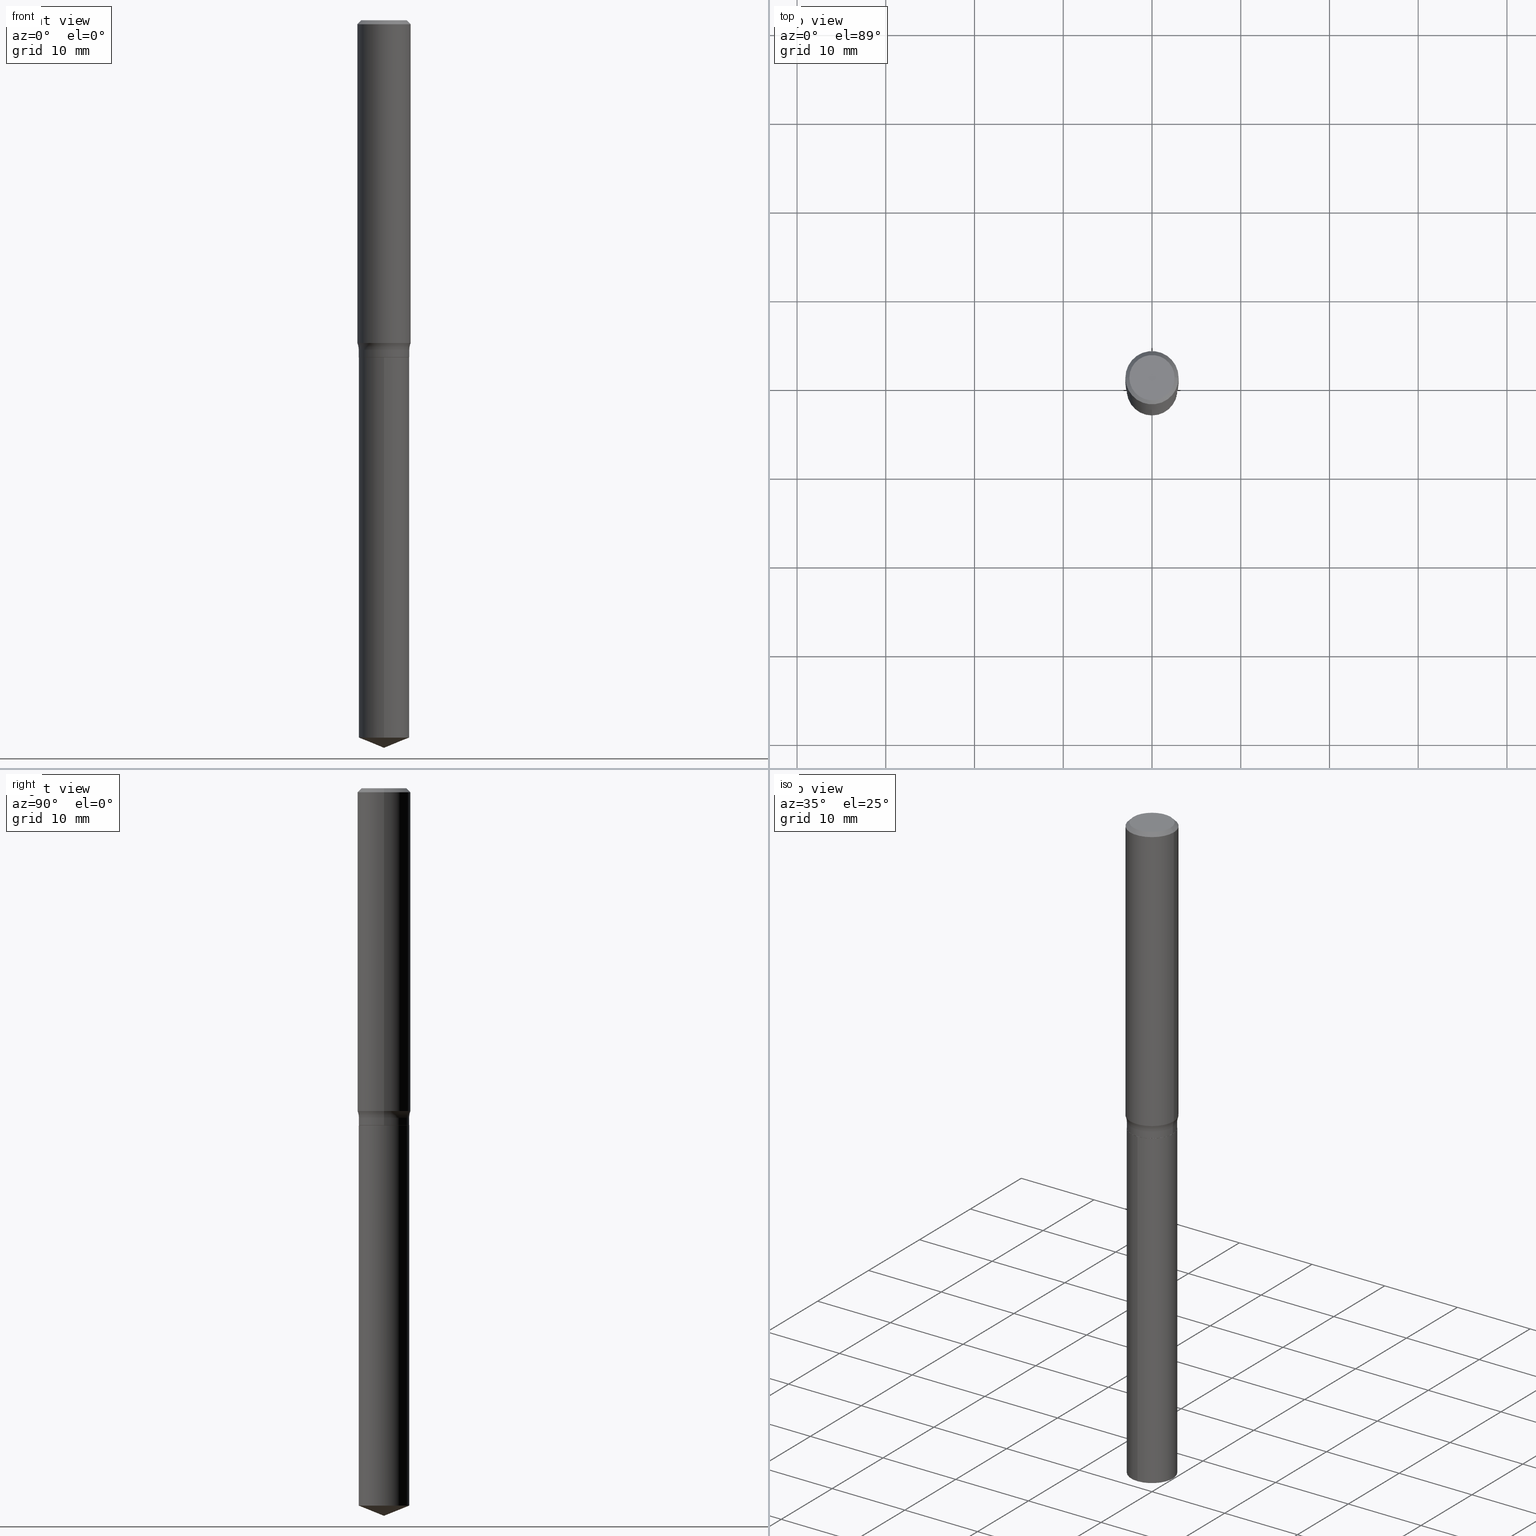
[diagram: canonical four-view strip — front | top / right | iso, engineering-drawing reading convention]
A machine part, canonical four-view strip (front | top / right | iso — engineering-drawing reading convention). The complete STEP part file that produces these views, byte-faithful:
ISO-10303-21;
HEADER;
FILE_DESCRIPTION (( 'STEP AP203' ),
    '1' );
FILE_NAME ('69250.STEP',
    '2024-04-19T17:31:19',
    ( '' ),
    ( '' ),
    'SwSTEP 2.0',
    'SolidWorks 2023',
    '' );
FILE_SCHEMA (( 'CONFIG_CONTROL_DESIGN' ));
ENDSEC;

DATA;
#1 = ADVANCED_FACE ( 'NONE', ( #329 ), #213, .T. ) ;
#2 = CONICAL_SURFACE ( 'NONE', #127, 97.44436430772752544, 1.186823891356141747 ) ;
#3 = EDGE_LOOP ( 'NONE', ( #48, #346, #88 ) ) ;
#4 = VERTEX_POINT ( 'NONE', #216 ) ;
#5 = CARTESIAN_POINT ( 'NONE',  ( 3.657687693411109493E-29, -5.222208638507693246E-15, -1.495700000000000029 ) ) ;
#6 = DIMENSIONAL_EXPONENTS ( 1.000000000000000000, 0.000000000000000000, 0.000000000000000000, 0.000000000000000000, 0.000000000000000000, 0.000000000000000000, 0.000000000000000000 ) ;
#7 = EDGE_LOOP ( 'NONE', ( #56, #394, #19, #464 ) ) ;
#8 = DIRECTION ( 'NONE',  ( -6.474490251793170740E-15, -0.9271838545667852038, 0.3746065934159174549 ) ) ;
#9 = ORIENTED_EDGE ( 'NONE', *, *, #89, .F. ) ;
#10 = CC_DESIGN_SECURITY_CLASSIFICATION ( #129, ( #86 ) ) ;
#11 = LINE ( 'NONE', #474, #375 ) ;
#12 = ORIENTED_EDGE ( 'NONE', *, *, #140, .T. ) ;
#13 = CARTESIAN_POINT ( 'NONE',  ( 3.502501020471370569E-29, -5.000643198279692524E-15, -1.432241135774360963 ) ) ;
#14 = DIRECTION ( 'NONE',  ( -2.445463019248761215E-29, 3.491489626065407071E-15, 1.000000000000000000 ) ) ;
#15 = CC_DESIGN_DATE_AND_TIME_ASSIGNMENT ( #369, #376, ( #92 ) ) ;
#16 = CYLINDRICAL_SURFACE ( 'NONE', #457, 0.1122000000000000081 ) ;
#17 = ORIENTED_EDGE ( 'NONE', *, *, #455, .F. ) ;
#18 = LOCAL_TIME ( 13, 31, 19.00000000000000000, #442 ) ;
#19 = ORIENTED_EDGE ( 'NONE', *, *, #124, .F. ) ;
#20 = CARTESIAN_POINT ( 'NONE',  ( 3.657687693411109493E-29, -5.222208638507693246E-15, -1.495700000000000029 ) ) ;
#21 = DIRECTION ( 'NONE',  ( -2.445468806185136597E-29, 3.491481338843145583E-15, 1.000000000000000000 ) ) ;
#22 = LENGTH_MEASURE_WITH_UNIT ( LENGTH_MEASURE( 0.02539999999999999897 ), #478 );
#23 = DIRECTION ( 'NONE',  ( 1.000000000000000000, -6.982962677686266711E-15, 0.000000000000000000 ) ) ;
#24 = PERSON_AND_ORGANIZATION_ROLE ( 'design_owner' ) ;
#25 = AXIS2_PLACEMENT_3D ( 'NONE', #381, #417, #415 ) ;
#26 = VECTOR ( 'NONE', #99, 39.37007874015748143 ) ;
#27 = CARTESIAN_POINT ( 'NONE',  ( 7.783106181679228868E-29, -1.111224080893544162E-14, -3.182668257461295003 ) ) ;
#28 = ADVANCED_FACE ( 'NONE', ( #475 ), #284, .F. ) ;
#29 = DIRECTION ( 'NONE',  ( -2.445463019248761215E-29, 3.491489626065407071E-15, 1.000000000000000000 ) ) ;
#30 = DIRECTION ( 'NONE',  ( -2.445468806185136597E-29, 3.491481338843145583E-15, 1.000000000000000000 ) ) ;
#31 = DIRECTION ( 'NONE',  ( -6.982962677686266711E-15, -1.000000000000000000, 3.491481338843145583E-15 ) ) ;
#32 = SECURITY_CLASSIFICATION_LEVEL ( 'unclassified' ) ;
#33 = AXIS2_PLACEMENT_3D ( 'NONE', #397, #286, #220 ) ;
#34 = DIRECTION ( 'NONE',  ( 2.445468806185136597E-29, -3.491481338843145583E-15, -1.000000000000000000 ) ) ;
#35 = LOCAL_TIME ( 13, 31, 19.00000000000000000, #422 ) ;
#36 = DATE_AND_TIME ( #312, #406 ) ;
#37 = ADVANCED_FACE ( 'NONE', ( #361 ), #364, .T. ) ;
#38 = CC_DESIGN_PERSON_AND_ORGANIZATION_ASSIGNMENT ( #229, #380, ( #86 ) ) ;
#39 = ORIENTED_EDGE ( 'NONE', *, *, #46, .F. ) ;
#40 = AXIS2_PLACEMENT_3D ( 'NONE', #161, #74, #483 ) ;
#41 = ORIENTED_EDGE ( 'NONE', *, *, #42, .T. ) ;
#42 = EDGE_CURVE ( 'NONE', #91, #351, #419, .T. ) ;
#43 = CIRCLE ( 'NONE', #120, 0.1116999999999999937 ) ;
#44 = CARTESIAN_POINT ( 'NONE',  ( 3.657687693411109493E-29, -5.222208638507693246E-15, -1.495700000000000029 ) ) ;
#45 = EDGE_LOOP ( 'NONE', ( #428, #168, #317, #235 ) ) ;
#46 = EDGE_CURVE ( 'NONE', #348, #91, #439, .T. ) ;
#47 = PLANE ( 'NONE',  #261 ) ;
#48 = ORIENTED_EDGE ( 'NONE', *, *, #358, .F. ) ;
#49 = FACE_OUTER_BOUND ( 'NONE', #234, .T. ) ;
#50 = EDGE_LOOP ( 'NONE', ( #17, #210, #141, #136 ) ) ;
#51 = TOROIDAL_SURFACE ( 'NONE', #283, 0.1902000000000000079, 0.07799999999999999989 ) ;
#52 = CARTESIAN_POINT ( 'NONE',  ( 3.657687693411109493E-29, -5.222208638507693246E-15, -1.495700000000000029 ) ) ;
#53 = EDGE_CURVE ( 'NONE', #4, #351, #185, .T. ) ;
#54 = DIRECTION ( 'NONE',  ( 1.000000000000000000, -6.982962677686266711E-15, 4.876176775795935793E-29 ) ) ;
#55 = CARTESIAN_POINT ( 'NONE',  ( 3.575275394642669920E-29, -5.104545717388679172E-15, -1.462000000000000188 ) ) ;
#56 = ORIENTED_EDGE ( 'NONE', *, *, #349, .T. ) ;
#57 = DIRECTION ( 'NONE',  ( -2.445468806185136597E-29, 3.491481338843145583E-15, 1.000000000000000000 ) ) ;
#58 = MANIFOLD_SOLID_BREP ( 'Body-Move/Copy2[1]', #293 ) ;
#59 = EDGE_LOOP ( 'NONE', ( #125, #107, #426, #12 ) ) ;
#60 = ADVANCED_FACE ( 'NONE', ( #402 ), #64, .F. ) ;
#61 = AXIS2_PLACEMENT_3D ( 'NONE', #144, #407, #289 ) ;
#62 = PERSON_AND_ORGANIZATION ( #307, #451 ) ;
#63 =( GEOMETRIC_REPRESENTATION_CONTEXT ( 3 ) GLOBAL_UNCERTAINTY_ASSIGNED_CONTEXT ( ( #115 ) ) GLOBAL_UNIT_ASSIGNED_CONTEXT ( ( #412, #142, #287 ) ) REPRESENTATION_CONTEXT ( 'NONE', 'WORKASPACE' ) );
#64 = PLANE ( 'NONE',  #84 ) ;
#65 = APPROVAL_DATE_TIME ( #152, #410 ) ;
#66 = FACE_OUTER_BOUND ( 'NONE', #82, .T. ) ;
#67 = CYLINDRICAL_SURFACE ( 'NONE', #260, 0.1122000000000000081 ) ;
#68 = LINE ( 'NONE', #249, #224 ) ;
#69 = AXIS2_PLACEMENT_3D ( 'NONE', #297, #231, #447 ) ;
#70 = APPROVAL_PERSON_ORGANIZATION ( #102, #410, #401 ) ;
#71 = LINE ( 'NONE', #265, #301 ) ;
#72 = DIRECTION ( 'NONE',  ( -2.445468806185136597E-29, 3.491481338843145583E-15, 1.000000000000000000 ) ) ;
#73 = APPLICATION_CONTEXT ( 'configuration controlled 3d designs of mechanical parts and assemblies' ) ;
#74 = DIRECTION ( 'NONE',  ( -2.445468806185136597E-29, 3.491481338843145583E-15, 1.000000000000000000 ) ) ;
#75 = ADVANCED_FACE ( 'NONE', ( #325 ), #208, .T. ) ;
#76 = APPROVAL_DATE_TIME ( #200, #424 ) ;
#77 = CIRCLE ( 'NONE', #147, 0.1122000000000000081 ) ;
#78 = CYLINDRICAL_SURFACE ( 'NONE', #112, 0.1122000000000000081 ) ;
#79 = EDGE_LOOP ( 'NONE', ( #128, #356 ) ) ;
#80 = ORIENTED_EDGE ( 'NONE', *, *, #288, .T. ) ;
#81 = EDGE_CURVE ( 'NONE', #348, #4, #137, .T. ) ;
#82 = EDGE_LOOP ( 'NONE', ( #460, #162, #41, #479 ) ) ;
#83 = EDGE_CURVE ( 'NONE', #123, #392, #481, .T. ) ;
#84 = AXIS2_PLACEMENT_3D ( 'NONE', #368, #254, #477 ) ;
#85 = ORIENTED_EDGE ( 'NONE', *, *, #143, .T. ) ;
#86 = PRODUCT_DEFINITION_FORMATION_WITH_SPECIFIED_SOURCE ( 'ANY', '', #296, .NOT_KNOWN. ) ;
#87 = CARTESIAN_POINT ( 'NONE',  ( 0.1181000000000002048, -5.825331090514442364E-15, -1.432241135774360963 ) ) ;
#88 = ORIENTED_EDGE ( 'NONE', *, *, #143, .F. ) ;
#89 = EDGE_CURVE ( 'NONE', #270, #215, #103, .T. ) ;
#90 = LINE ( 'NONE', #471, #148 ) ;
#91 = VERTEX_POINT ( 'NONE', #432 ) ;
#92 = PRODUCT_DEFINITION ( 'UNKNOWN', '', #86, #238 ) ;
#93 = DIRECTION ( 'NONE',  ( 1.000000000000000000, -6.982962677686262766E-15, 0.000000000000000000 ) ) ;
#94 = DIRECTION ( 'NONE',  ( -2.445468806185136597E-29, 3.491481338843145583E-15, 1.000000000000000000 ) ) ;
#95 = AXIS2_PLACEMENT_3D ( 'NONE', #411, #72, #187 ) ;
#96 = AXIS2_PLACEMENT_3D ( 'NONE', #427, #214, #93 ) ;
#97 = DIRECTION ( 'NONE',  ( 1.000000000000000000, -6.982962677686265922E-15, 4.883557194083112901E-29 ) ) ;
#98 = ORIENTED_EDGE ( 'NONE', *, *, #455, .T. ) ;
#99 = DIRECTION ( 'NONE',  ( -0.7071067811865454633, 2.468850131082235367E-15, -0.7071067811865495711 ) ) ;
#100 = EDGE_LOOP ( 'NONE', ( #291, #242, #197, #206 ) ) ;
#101 = APPLICATION_CONTEXT ( 'configuration controlled 3d designs of mechanical parts and assemblies' ) ;
#102 = PERSON_AND_ORGANIZATION ( #307, #451 ) ;
#103 = LINE ( 'NONE', #145, #164 ) ;
#104 = CIRCLE ( 'NONE', #95, 0.1180999999999999966 ) ;
#105 = CIRCLE ( 'NONE', #396, 0.1116999999999999937 ) ;
#106 = CALENDAR_DATE ( 2024, 19, 4 ) ;
#107 = ORIENTED_EDGE ( 'NONE', *, *, #151, .F. ) ;
#108 = DIRECTION ( 'NONE',  ( -6.982962677686265922E-15, -1.000000000000000000, 3.498761904101859901E-15 ) ) ;
#109 = DATE_AND_TIME ( #336, #365 ) ;
#110 = CC_DESIGN_PERSON_AND_ORGANIZATION_ASSIGNMENT ( #62, #409, ( #92 ) ) ;
#111 = DIRECTION ( 'NONE',  ( -6.982962677686265133E-15, -1.000000000000000000, 4.869604266781217263E-15 ) ) ;
#112 = AXIS2_PLACEMENT_3D ( 'NONE', #190, #489, #334 ) ;
#113 = CIRCLE ( 'NONE', #275, 0.1122000000000000081 ) ;
#114 = DIRECTION ( 'NONE',  ( -2.445468806185136597E-29, 3.491481338843145583E-15, 1.000000000000000000 ) ) ;
#115 = UNCERTAINTY_MEASURE_WITH_UNIT (LENGTH_MEASURE( 1.000000000000000082E-05 ), #412, 'distance_accuracy_value', 'NONE');
#116 = ADVANCED_FACE ( 'NONE', ( #66 ), #188, .T. ) ;
#117 = DIRECTION ( 'NONE',  ( 1.000000000000000000, -6.982962677686270655E-15, 0.000000000000000000 ) ) ;
#118 = ORIENTED_EDGE ( 'NONE', *, *, #390, .T. ) ;
#119 = AXIS2_PLACEMENT_3D ( 'NONE', #408, #21, #441 ) ;
#120 = AXIS2_PLACEMENT_3D ( 'NONE', #44, #438, #393 ) ;
#121 = VERTEX_POINT ( 'NONE', #487 ) ;
#122 = EDGE_CURVE ( 'NONE', #4, #276, #405, .T. ) ;
#123 = VERTEX_POINT ( 'NONE', #159 ) ;
#124 = EDGE_CURVE ( 'NONE', #341, #240, #318, .T. ) ;
#125 = ORIENTED_EDGE ( 'NONE', *, *, #445, .F. ) ;
#126 = FACE_OUTER_BOUND ( 'NONE', #100, .T. ) ;
#127 = AXIS2_PLACEMENT_3D ( 'NONE', #337, #452, #108 ) ;
#128 = ORIENTED_EDGE ( 'NONE', *, *, #349, .F. ) ;
#129 = SECURITY_CLASSIFICATION ( '', '', #32 ) ;
#130 = CARTESIAN_POINT ( 'NONE',  ( 7.893954626135001051E-29, -1.127052851293913482E-14, -3.228000000000000203 ) ) ;
#131 = EDGE_LOOP ( 'NONE', ( #308, #118, #278, #9 ) ) ;
#132 = PRODUCT_DEFINITION_SHAPE ( 'NONE', 'NONE',  #92 ) ;
#133 = DIRECTION ( 'NONE',  ( -6.982962677686265133E-15, -1.000000000000000000, 2.434802133390608632E-15 ) ) ;
#134 = DIRECTION ( 'NONE',  ( -2.445468806185136877E-29, 3.491481338843145188E-15, 1.000000000000000000 ) ) ;
#135 = DIRECTION ( 'NONE',  ( -2.445468806185136877E-29, 3.491481338843145188E-15, 1.000000000000000000 ) ) ;
#136 = ORIENTED_EDGE ( 'NONE', *, *, #230, .F. ) ;
#137 = CIRCLE ( 'NONE', #61, 0.1181000000000001909 ) ;
#138 = CC_DESIGN_APPROVAL ( #410, ( #92 ) ) ;
#139 = CARTESIAN_POINT ( 'NONE',  ( 0.1122000000000000081, -7.834884124363992007E-16, 5.471070342443040245E-30 ) ) ;
#140 = EDGE_CURVE ( 'NONE', #351, #91, #104, .T. ) ;
#141 = ORIENTED_EDGE ( 'NONE', *, *, #458, .T. ) ;
#142 =( NAMED_UNIT ( * ) PLANE_ANGLE_UNIT ( ) SI_UNIT ( $, .RADIAN. ) );
#143 = EDGE_CURVE ( 'NONE', #219, #270, #172, .T. ) ;
#144 = CARTESIAN_POINT ( 'NONE',  ( 3.502501020471370569E-29, -5.000643198279692524E-15, -1.432241135774360963 ) ) ;
#145 = CARTESIAN_POINT ( 'NONE',  ( -7.834884124363625186E-16, -0.1122000000000052261, -1.495699999999999807 ) ) ;
#146 = ADVANCED_FACE ( 'NONE', ( #259 ), #67, .T. ) ;
#147 = AXIS2_PLACEMENT_3D ( 'NONE', #418, #30, #23 ) ;
#148 = VECTOR ( 'NONE', #239, 39.37007874015748143 ) ;
#149 = DIRECTION ( 'NONE',  ( 1.000000000000000000, 0.000000000000000000, 0.000000000000000000 ) ) ;
#150 = CARTESIAN_POINT ( 'NONE',  ( 0.1902000000000000079, -6.432705218684607208E-15, -1.462000000000000188 ) ) ;
#151 = EDGE_CURVE ( 'NONE', #392, #123, #374, .T. ) ;
#152 = DATE_AND_TIME ( #480, #350 ) ;
#153 = CARTESIAN_POINT ( 'NONE',  ( 7.893954626135001051E-29, -1.127052851293913482E-14, -3.228000000000000203 ) ) ;
#154 = EDGE_LOOP ( 'NONE', ( #454, #273, #179, #39 ) ) ;
#155 = APPROVAL_DATE_TIME ( #109, #338 ) ;
#156 = FACE_OUTER_BOUND ( 'NONE', #45, .T. ) ;
#157 = ADVANCED_FACE ( 'NONE', ( #373 ), #2, .T. ) ;
#158 = CC_DESIGN_APPROVAL ( #338, ( #86 ) ) ;
#159 = CARTESIAN_POINT ( 'NONE',  ( 0.1003850000000000159, -7.803837484803599345E-16, -2.049109640502812012E-17 ) ) ;
#160 = SHAPE_DEFINITION_REPRESENTATION ( #132, #269 ) ;
#161 = CARTESIAN_POINT ( 'NONE',  ( 0.000000000000000000, 0.000000000000000000, 0.000000000000000000 ) ) ;
#162 = ORIENTED_EDGE ( 'NONE', *, *, #445, .T. ) ;
#163 = CALENDAR_DATE ( 2024, 19, 4 ) ;
#164 = VECTOR ( 'NONE', #444, 39.37007874015748143 ) ;
#165 = CIRCLE ( 'NONE', #436, 0.1122000000000000081 ) ;
#166 = ORIENTED_EDGE ( 'NONE', *, *, #83, .T. ) ;
#167 = APPROVAL_ROLE ( '' ) ;
#168 = ORIENTED_EDGE ( 'NONE', *, *, #81, .F. ) ;
#169 = DIRECTION ( 'NONE',  ( -2.445463019248761495E-29, 3.491489626065407071E-15, 1.000000000000000000 ) ) ;
#170 = ORIENTED_EDGE ( 'NONE', *, *, #184, .F. ) ;
#171 = CARTESIAN_POINT ( 'NONE',  ( -0.1003850000000000159, 7.319105043583386689E-16, -2.049109640503831060E-17 ) ) ;
#172 = CIRCLE ( 'NONE', #292, 0.1122000000000000081 ) ;
#173 = ORIENTED_EDGE ( 'NONE', *, *, #399, .F. ) ;
#174 = CARTESIAN_POINT ( 'NONE',  ( 7.972289495229102672E-16, 0.1121999999999947761, -1.495700000000000474 ) ) ;
#175 = CARTESIAN_POINT ( 'NONE',  ( 0.1181000000000001077, -8.246878922347488542E-16, 5.758764772215005345E-30 ) ) ;
#176 = LINE ( 'NONE', #391, #195 ) ;
#177 = DIRECTION ( 'NONE',  ( -2.445468806185136877E-29, 3.491481338843145188E-15, 1.000000000000000000 ) ) ;
#178 = FACE_OUTER_BOUND ( 'NONE', #384, .T. ) ;
#179 = ORIENTED_EDGE ( 'NONE', *, *, #42, .F. ) ;
#180 = AXIS2_PLACEMENT_3D ( 'NONE', #150, #31, #117 ) ;
#181 = AXIS2_PLACEMENT_3D ( 'NONE', #330, #440, #149 ) ;
#182 = CARTESIAN_POINT ( 'NONE',  ( -8.838410834231123198E-28, 1.261897053808972717E-13, 36.14207874015747990 ) ) ;
#183 = DIRECTION ( 'NONE',  ( -6.982962677686265133E-15, -1.000000000000000000, 2.434802133390608632E-15 ) ) ;
#184 = EDGE_CURVE ( 'NONE', #252, #276, #77, .T. ) ;
#185 = LINE ( 'NONE', #250, #327 ) ;
#186 = PERSON_AND_ORGANIZATION ( #307, #451 ) ;
#187 = DIRECTION ( 'NONE',  ( 1.000000000000000000, -6.982962677686266711E-15, 0.000000000000000000 ) ) ;
#188 = CONICAL_SURFACE ( 'NONE', #194, 0.1180999999999999966, 0.7853981633974453924 ) ;
#189 = APPLICATION_PROTOCOL_DEFINITION ( 'international standard', 'config_control_design', 1994, #101 ) ;
#190 = CARTESIAN_POINT ( 'NONE',  ( 3.657687693411109493E-29, -5.222208638507693246E-15, -1.495700000000000029 ) ) ;
#191 = ADVANCED_FACE ( 'NONE', ( #378 ), #78, .T. ) ;
#192 = FACE_OUTER_BOUND ( 'NONE', #50, .T. ) ;
#193 = PERSON_AND_ORGANIZATION_ROLE ( 'classification_officer' ) ;
#194 = AXIS2_PLACEMENT_3D ( 'NONE', #448, #34, #485 ) ;
#195 = VECTOR ( 'NONE', #398, 39.37007874015748143 ) ;
#196 = CARTESIAN_POINT ( 'NONE',  ( 0.000000000000000000, 0.000000000000000000, 0.000000000000000000 ) ) ;
#197 = ORIENTED_EDGE ( 'NONE', *, *, #232, .T. ) ;
#198 = CC_DESIGN_PERSON_AND_ORGANIZATION_ASSIGNMENT ( #255, #24, ( #296 ) ) ;
#199 = VERTEX_POINT ( 'NONE', #153 ) ;
#200 = DATE_AND_TIME ( #163, #35 ) ;
#201 = AXIS2_PLACEMENT_3D ( 'NONE', #333, #366, #54 ) ;
#202 = EDGE_LOOP ( 'NONE', ( #237, #166 ) ) ;
#203 = DIRECTION ( 'NONE',  ( -2.445463019248761215E-29, 3.491489626065407071E-15, 1.000000000000000000 ) ) ;
#204 = ORIENTED_EDGE ( 'NONE', *, *, #390, .F. ) ;
#205 = DIRECTION ( 'NONE',  ( 1.000000000000000000, -6.982962677686266711E-15, 4.876176775795935793E-29 ) ) ;
#206 = ORIENTED_EDGE ( 'NONE', *, *, #212, .F. ) ;
#207 = LINE ( 'NONE', #130, #491 ) ;
#208 = CONICAL_SURFACE ( 'NONE', #473, 0.1180999999999999966, 0.7853981633974453924 ) ;
#209 = CIRCLE ( 'NONE', #465, 0.1122000000000000081 ) ;
#210 = ORIENTED_EDGE ( 'NONE', *, *, #122, .T. ) ;
#211 = DIRECTION ( 'NONE',  ( 0.7071067811865454633, -7.319954787623248157E-15, -0.7071067811865495711 ) ) ;
#212 = EDGE_CURVE ( 'NONE', #240, #341, #433, .T. ) ;
#213 = CYLINDRICAL_SURFACE ( 'NONE', #201, 0.1181000000000001077 ) ;
#214 = DIRECTION ( 'NONE',  ( -2.445468806185136597E-29, 3.491481338843145583E-15, 1.000000000000000000 ) ) ;
#215 = VERTEX_POINT ( 'NONE', #339 ) ;
#216 = CARTESIAN_POINT ( 'NONE',  ( -0.1181000000000002048, -4.161492227347013538E-15, -1.432241135774360963 ) ) ;
#217 = CIRCLE ( 'NONE', #382, 0.1122000000000000081 ) ;
#218 = ADVANCED_FACE ( 'NONE', ( #492 ), #453, .T. ) ;
#219 = VERTEX_POINT ( 'NONE', #294 ) ;
#220 = DIRECTION ( 'NONE',  ( 1.000000000000000000, -6.982962677686265922E-15, 4.876176775795935793E-29 ) ) ;
#221 = APPROVAL_ROLE ( '' ) ;
#222 = DIRECTION ( 'NONE',  ( 1.000000000000000000, -6.982962677686266711E-15, 4.876176775795935793E-29 ) ) ;
#223 = AXIS2_PLACEMENT_3D ( 'NONE', #345, #114, #305 ) ;
#224 = VECTOR ( 'NONE', #332, 39.37007874015748143 ) ;
#225 = DIRECTION ( 'NONE',  ( 0.7071067811866199593, -2.468850131083015945E-15, 0.7071067811864750752 ) ) ;
#226 = DIRECTION ( 'NONE',  ( -2.445468806185136597E-29, 3.491481338843145583E-15, 1.000000000000000000 ) ) ;
#227 = PERSON_AND_ORGANIZATION_ROLE ( 'design_supplier' ) ;
#228 = CARTESIAN_POINT ( 'NONE',  ( 0.1122000000000000081, -5.888034129825078373E-15, -1.462000000000000188 ) ) ;
#229 = PERSON_AND_ORGANIZATION ( #307, #451 ) ;
#230 = EDGE_CURVE ( 'NONE', #348, #252, #387, .T. ) ;
#231 = DIRECTION ( 'NONE',  ( -2.445468806185136597E-29, 3.491481338843145583E-15, 1.000000000000000000 ) ) ;
#232 = EDGE_CURVE ( 'NONE', #121, #341, #71, .T. ) ;
#233 = CC_DESIGN_PERSON_AND_ORGANIZATION_ASSIGNMENT ( #309, #227, ( #86 ) ) ;
#234 = EDGE_LOOP ( 'NONE', ( #363, #437, #311, #472 ) ) ;
#235 = ORIENTED_EDGE ( 'NONE', *, *, #184, .T. ) ;
#236 = VECTOR ( 'NONE', #134, 39.37007874015748143 ) ;
#237 = ORIENTED_EDGE ( 'NONE', *, *, #151, .T. ) ;
#238 = DESIGN_CONTEXT ( 'detailed design', #101, 'design' ) ;
#239 = DIRECTION ( 'NONE',  ( 6.588037525764784191E-15, 0.9271838545667878684, 0.3746065934159110156 ) ) ;
#240 = VERTEX_POINT ( 'NONE', #377 ) ;
#241 = DIRECTION ( 'NONE',  ( -2.445468806185136597E-29, 3.491481338843145583E-15, 1.000000000000000000 ) ) ;
#242 = ORIENTED_EDGE ( 'NONE', *, *, #355, .T. ) ;
#243 = LINE ( 'NONE', #139, #244 ) ;
#244 = VECTOR ( 'NONE', #135, 39.37007874015748143 ) ;
#245 = DIRECTION ( 'NONE',  ( 2.445468806185136597E-29, -3.491481338843145583E-15, -1.000000000000000000 ) ) ;
#246 = FACE_OUTER_BOUND ( 'NONE', #7, .T. ) ;
#247 = ORIENTED_EDGE ( 'NONE', *, *, #313, .F. ) ;
#248 = PRODUCT_RELATED_PRODUCT_CATEGORY ( 'detail', '', ( #296 ) ) ;
#249 = CARTESIAN_POINT ( 'NONE',  ( -0.1116999999999999937, -4.428532402663660397E-15, -1.495700000000000029 ) ) ;
#250 = CARTESIAN_POINT ( 'NONE',  ( -0.1181000000000001077, 8.391509709326790846E-16, -5.809262341591049389E-30 ) ) ;
#251 = APPROVAL_STATUS ( 'not_yet_approved' ) ;
#252 = VERTEX_POINT ( 'NONE', #228 ) ;
#253 = APPROVAL_PERSON_ORGANIZATION ( #306, #424, #167 ) ;
#254 = DIRECTION ( 'NONE',  ( 2.438088387897960049E-29, -3.491481338843145188E-15, -1.000000000000000000 ) ) ;
#255 = PERSON_AND_ORGANIZATION ( #307, #451 ) ;
#256 = DIRECTION ( 'NONE',  ( 1.000000000000000000, -6.982962677686266711E-15, 0.000000000000000000 ) ) ;
#257 = DIRECTION ( 'NONE',  ( -6.982962677686265133E-15, -1.000000000000000000, 4.869604266781217263E-15 ) ) ;
#258 = ADVANCED_FACE ( 'NONE', ( #192 ), #482, .F. ) ;
#259 = FACE_OUTER_BOUND ( 'NONE', #430, .T. ) ;
#260 = AXIS2_PLACEMENT_3D ( 'NONE', #196, #226, #222 ) ;
#261 = AXIS2_PLACEMENT_3D ( 'NONE', #280, #357, #354 ) ;
#262 = DIRECTION ( 'NONE',  ( -2.445463019248761215E-29, 3.491489626065407071E-15, 1.000000000000000000 ) ) ;
#263 = CARTESIAN_POINT ( 'NONE',  ( 3.657687693411109493E-29, -5.222208638507693246E-15, -1.495700000000000029 ) ) ;
#264 = ADVANCED_FACE ( 'NONE', ( #156 ), #51, .F. ) ;
#265 = CARTESIAN_POINT ( 'NONE',  ( 0.1116999999999999937, -6.002205569605248651E-15, -1.495700000000000029 ) ) ;
#266 = ORIENTED_EDGE ( 'NONE', *, *, #358, .T. ) ;
#267 = EDGE_CURVE ( 'NONE', #359, #215, #209, .T. ) ;
#268 = CONICAL_SURFACE ( 'NONE', #96, 0.1116999999999999937, 0.7853981633975507526 ) ;
#269 = ADVANCED_BREP_SHAPE_REPRESENTATION ( '69250', ( #58, #385, #181 ), #63 ) ;
#270 = VERTEX_POINT ( 'NONE', #466 ) ;
#271 = PERSON_AND_ORGANIZATION ( #307, #451 ) ;
#272 = ORIENTED_EDGE ( 'NONE', *, *, #463, .F. ) ;
#273 = ORIENTED_EDGE ( 'NONE', *, *, #53, .T. ) ;
#274 = FACE_OUTER_BOUND ( 'NONE', #131, .T. ) ;
#275 = AXIS2_PLACEMENT_3D ( 'NONE', #367, #290, #484 ) ;
#276 = VERTEX_POINT ( 'NONE', #383 ) ;
#277 = CARTESIAN_POINT ( 'NONE',  ( 0.1122000000000000081, -6.003951310274670943E-15, -1.495200000000000307 ) ) ;
#278 = ORIENTED_EDGE ( 'NONE', *, *, #470, .F. ) ;
#279 = ADVANCED_FACE ( 'NONE', ( #246 ), #268, .T. ) ;
#280 = CARTESIAN_POINT ( 'NONE',  ( 3.657687693411109493E-29, -5.222208638507693246E-15, -1.495700000000000029 ) ) ;
#281 = DIRECTION ( 'NONE',  ( -1.000000000000000000, 6.982962677686266711E-15, 0.000000000000000000 ) ) ;
#282 = DIRECTION ( 'NONE',  ( 1.000000000000000000, -6.982962677686262766E-15, 0.000000000000000000 ) ) ;
#283 = AXIS2_PLACEMENT_3D ( 'NONE', #55, #360, #97 ) ;
#284 = PLANE ( 'NONE',  #33 ) ;
#285 = DIRECTION ( 'NONE',  ( -6.982962677686265133E-15, -1.000000000000000000, 2.434802133390608632E-15 ) ) ;
#286 = DIRECTION ( 'NONE',  ( -2.438088387897960049E-29, 3.491481338843145188E-15, 1.000000000000000000 ) ) ;
#287 =( NAMED_UNIT ( * ) SI_UNIT ( $, .STERADIAN. ) SOLID_ANGLE_UNIT ( ) );
#288 = EDGE_CURVE ( 'NONE', #240, #276, #176, .T. ) ;
#289 = DIRECTION ( 'NONE',  ( 1.000000000000000000, -6.982962677686269077E-15, 0.000000000000000000 ) ) ;
#290 = DIRECTION ( 'NONE',  ( -2.445468806185136597E-29, 3.491481338843145583E-15, 1.000000000000000000 ) ) ;
#291 = ORIENTED_EDGE ( 'NONE', *, *, #488, .F. ) ;
#292 = AXIS2_PLACEMENT_3D ( 'NONE', #27, #262, #111 ) ;
#293 = CLOSED_SHELL ( 'NONE', ( #299, #157, #37, #191, #379 ) ) ;
#294 = CARTESIAN_POINT ( 'NONE',  ( 7.972289495229100700E-16, 0.1121999999999888920, -3.182668257461295891 ) ) ;
#295 = COORDINATED_UNIVERSAL_TIME_OFFSET ( 5, 0, .BEHIND. ) ;
#296 = PRODUCT ( '69250', '69250', '', ( #449 ) ) ;
#297 = CARTESIAN_POINT ( 'NONE',  ( 3.656464959008016692E-29, -5.220462897838271742E-15, -1.495200000000000307 ) ) ;
#298 = DIRECTION ( 'NONE',  ( 1.000000000000000000, -6.982962677686269077E-15, 0.000000000000000000 ) ) ;
#299 = ADVANCED_FACE ( 'NONE', ( #274 ), #434, .T. ) ;
#300 = CARTESIAN_POINT ( 'NONE',  ( 3.575275394642669920E-29, -5.104545717388679172E-15, -1.462000000000000188 ) ) ;
#301 = VECTOR ( 'NONE', #225, 39.37007874015748143 ) ;
#302 = APPROVAL_PERSON_ORGANIZATION ( #186, #338, #221 ) ;
#303 = COORDINATED_UNIVERSAL_TIME_OFFSET ( 5, 0, .BEHIND. ) ;
#304 = DIRECTION ( 'NONE',  ( -2.445468806185136597E-29, 3.491481338843145583E-15, 1.000000000000000000 ) ) ;
#305 = DIRECTION ( 'NONE',  ( 1.000000000000000000, -6.982962677686266711E-15, 4.875668750515085695E-29 ) ) ;
#306 = PERSON_AND_ORGANIZATION ( #307, #451 ) ;
#307 = PERSON ( 'UNSPECIFIED', 'UNSPECIFIED', 'UNSPECIFIED', ('UNSPECIFIED'), ('UNSPECIFIED'), ('UNSPECIFIED') ) ;
#308 = ORIENTED_EDGE ( 'NONE', *, *, #463, .T. ) ;
#309 = PERSON_AND_ORGANIZATION ( #307, #451 ) ;
#310 = AXIS2_PLACEMENT_3D ( 'NONE', #300, #340, #450 ) ;
#311 = ORIENTED_EDGE ( 'NONE', *, *, #399, .T. ) ;
#312 = CALENDAR_DATE ( 2024, 19, 4 ) ;
#313 = EDGE_CURVE ( 'NONE', #199, #270, #207, .T. ) ;
#314 = ORIENTED_EDGE ( 'NONE', *, *, #124, .T. ) ;
#315 = ADVANCED_FACE ( 'NONE', ( #126 ), #335, .T. ) ;
#316 = DIRECTION ( 'NONE',  ( -2.445463019248761215E-29, 3.491489626065407071E-15, 1.000000000000000000 ) ) ;
#317 = ORIENTED_EDGE ( 'NONE', *, *, #230, .T. ) ;
#318 = CIRCLE ( 'NONE', #342, 0.1122000000000000081 ) ;
#319 = CARTESIAN_POINT ( 'NONE',  ( -0.1180999999999999966, 7.628363003171413738E-16, -0.01771500000000010913 ) ) ;
#320 = CC_DESIGN_APPROVAL ( #424, ( #129 ) ) ;
#321 = ORIENTED_EDGE ( 'NONE', *, *, #267, .F. ) ;
#322 = CARTESIAN_POINT ( 'NONE',  ( -0.1116999999999999937, -4.425883175489550774E-15, -1.495700000000000029 ) ) ;
#323 = CARTESIAN_POINT ( 'NONE',  ( 4.332147990156996744E-31, -6.185159191760670395E-17, -0.01771500000000010913 ) ) ;
#324 = CARTESIAN_POINT ( 'NONE',  ( 3.657687693411109493E-29, -5.222208638507693246E-15, -1.495700000000000029 ) ) ;
#325 = FACE_OUTER_BOUND ( 'NONE', #59, .T. ) ;
#326 = CARTESIAN_POINT ( 'NONE',  ( 0.000000000000000000, 0.000000000000000000, 0.000000000000000000 ) ) ;
#327 = VECTOR ( 'NONE', #177, 39.37007874015748143 ) ;
#328 = AXIS2_PLACEMENT_3D ( 'NONE', #5, #316, #133 ) ;
#329 = FACE_OUTER_BOUND ( 'NONE', #154, .T. ) ;
#330 = CARTESIAN_POINT ( 'NONE',  ( 0.000000000000000000, 0.000000000000000000, 0.000000000000000000 ) ) ;
#331 = DIRECTION ( 'NONE',  ( -6.982962677686265922E-15, -1.000000000000000000, 3.498761904101859901E-15 ) ) ;
#332 = DIRECTION ( 'NONE',  ( -0.7071067811866199593, 7.493145998870616062E-15, 0.7071067811864750752 ) ) ;
#333 = CARTESIAN_POINT ( 'NONE',  ( 0.000000000000000000, 0.000000000000000000, 0.000000000000000000 ) ) ;
#334 = DIRECTION ( 'NONE',  ( -6.982962677686265133E-15, -1.000000000000000000, 2.434802133390608632E-15 ) ) ;
#335 = CONICAL_SURFACE ( 'NONE', #388, 0.1116999999999999937, 0.7853981633975507526 ) ;
#336 = CALENDAR_DATE ( 2024, 19, 4 ) ;
#337 = CARTESIAN_POINT ( 'NONE',  ( -8.838410834231123198E-28, 1.261897053808972717E-13, 36.14207874015747990 ) ) ;
#338 = APPROVAL ( #486, 'UNSPECIFIED' ) ;
#339 = CARTESIAN_POINT ( 'NONE',  ( -7.834884124363625186E-16, -0.1122000000000052261, -1.495699999999999807 ) ) ;
#340 = DIRECTION ( 'NONE',  ( -2.445468806185136597E-29, 3.491481338843145583E-15, 1.000000000000000000 ) ) ;
#341 = VERTEX_POINT ( 'NONE', #277 ) ;
#342 = AXIS2_PLACEMENT_3D ( 'NONE', #413, #304, #256 ) ;
#343 = VECTOR ( 'NONE', #211, 39.37007874015748143 ) ;
#344 = APPROVAL_STATUS ( 'not_yet_approved' ) ;
#345 = CARTESIAN_POINT ( 'NONE',  ( 5.011033706304132718E-46, -7.154428071060963220E-32, -2.049109640503330010E-17 ) ) ;
#346 = ORIENTED_EDGE ( 'NONE', *, *, #313, .T. ) ;
#347 = CLOSED_SHELL ( 'NONE', ( #279, #116, #1, #258, #146, #370, #264, #218, #75, #60, #28, #315 ) ) ;
#348 = VERTEX_POINT ( 'NONE', #87 ) ;
#349 = EDGE_CURVE ( 'NONE', #121, #420, #43, .T. ) ;
#350 = LOCAL_TIME ( 13, 31, 19.00000000000000000, #404 ) ;
#351 = VERTEX_POINT ( 'NONE', #362 ) ;
#352 = DIRECTION ( 'NONE',  ( 1.000000000000000000, -6.982962677686262766E-15, 0.000000000000000000 ) ) ;
#353 = ORIENTED_EDGE ( 'NONE', *, *, #140, .F. ) ;
#354 = DIRECTION ( 'NONE',  ( 6.982962677686265922E-15, 1.000000000000000000, -3.491489626065407071E-15 ) ) ;
#355 = EDGE_CURVE ( 'NONE', #420, #121, #105, .T. ) ;
#356 = ORIENTED_EDGE ( 'NONE', *, *, #355, .F. ) ;
#357 = DIRECTION ( 'NONE',  ( 2.445463019248760935E-29, -3.491489626065407071E-15, -1.000000000000000000 ) ) ;
#358 = EDGE_CURVE ( 'NONE', #199, #219, #90, .T. ) ;
#359 = VERTEX_POINT ( 'NONE', #174 ) ;
#360 = DIRECTION ( 'NONE',  ( -2.445468806185136597E-29, 3.491481338843145583E-15, 1.000000000000000000 ) ) ;
#361 = FACE_OUTER_BOUND ( 'NONE', #3, .T. ) ;
#362 = CARTESIAN_POINT ( 'NONE',  ( -0.1180999999999999966, -1.692096424165969981E-15, -0.01771500000000010913 ) ) ;
#363 = ORIENTED_EDGE ( 'NONE', *, *, #288, .F. ) ;
#364 = CONICAL_SURFACE ( 'NONE', #490, 97.44436430772752544, 1.186823891356141747 ) ;
#365 = LOCAL_TIME ( 13, 31, 19.00000000000000000, #295 ) ;
#366 = DIRECTION ( 'NONE',  ( -2.445468806185136597E-29, 3.491481338843145583E-15, 1.000000000000000000 ) ) ;
#367 = CARTESIAN_POINT ( 'NONE',  ( 3.575275394642669920E-29, -5.104545717388679172E-15, -1.462000000000000188 ) ) ;
#368 = CARTESIAN_POINT ( 'NONE',  ( 2.505516853152066359E-46, -3.577214035530481610E-32, -1.024554820251665005E-17 ) ) ;
#369 = DATE_AND_TIME ( #106, #18 ) ;
#370 = ADVANCED_FACE ( 'NONE', ( #49 ), #16, .T. ) ;
#371 = CARTESIAN_POINT ( 'NONE',  ( 4.332147990156996744E-31, -6.185159191760670395E-17, -0.01771500000000010913 ) ) ;
#372 = APPLICATION_PROTOCOL_DEFINITION ( 'international standard', 'config_control_design', 1994, #73 ) ;
#373 = FACE_OUTER_BOUND ( 'NONE', #461, .T. ) ;
#374 = CIRCLE ( 'NONE', #223, 0.1003850000000000159 ) ;
#375 = VECTOR ( 'NONE', #169, 39.37007874015748143 ) ;
#376 = DATE_TIME_ROLE ( 'creation_date' ) ;
#377 = CARTESIAN_POINT ( 'NONE',  ( -0.1122000000000000081, -4.365275358090643287E-15, -1.495200000000000307 ) ) ;
#378 = FACE_OUTER_BOUND ( 'NONE', #456, .T. ) ;
#379 = ADVANCED_FACE ( 'NONE', ( #178 ), #47, .F. ) ;
#380 = PERSON_AND_ORGANIZATION_ROLE ( 'creator' ) ;
#381 = CARTESIAN_POINT ( 'NONE',  ( -0.1902000000000000079, -3.753093433972968365E-15, -1.462000000000000188 ) ) ;
#382 = AXIS2_PLACEMENT_3D ( 'NONE', #446, #29, #257 ) ;
#383 = CARTESIAN_POINT ( 'NONE',  ( -0.1122000000000000081, -4.365275358090643287E-15, -1.462000000000000188 ) ) ;
#384 = EDGE_LOOP ( 'NONE', ( #425, #400 ) ) ;
#385 = MANIFOLD_SOLID_BREP ( 'Body-Move/Copy2[2]', #347 ) ;
#386 = ORIENTED_EDGE ( 'NONE', *, *, #53, .F. ) ;
#387 = CIRCLE ( 'NONE', #180, 0.07799999999999999989 ) ;
#388 = AXIS2_PLACEMENT_3D ( 'NONE', #324, #462, #352 ) ;
#389 = ORIENTED_EDGE ( 'NONE', *, *, #89, .T. ) ;
#390 = EDGE_CURVE ( 'NONE', #219, #359, #11, .T. ) ;
#391 = CARTESIAN_POINT ( 'NONE',  ( -0.1122000000000000081, 7.972289495228324658E-16, -5.519045171266004421E-30 ) ) ;
#392 = VERTEX_POINT ( 'NONE', #171 ) ;
#393 = DIRECTION ( 'NONE',  ( 1.000000000000000000, -6.982962677686262766E-15, 0.000000000000000000 ) ) ;
#394 = ORIENTED_EDGE ( 'NONE', *, *, #488, .T. ) ;
#395 = CARTESIAN_POINT ( 'NONE',  ( 0.1180999999999999966, -8.720764054544245267E-16, -0.01771500000000010913 ) ) ;
#396 = AXIS2_PLACEMENT_3D ( 'NONE', #52, #429, #282 ) ;
#397 = CARTESIAN_POINT ( 'NONE',  ( 3.657687693411109493E-29, -5.222208638507693246E-15, -1.495700000000000029 ) ) ;
#398 = DIRECTION ( 'NONE',  ( -2.445468806185136877E-29, 3.491481338843145188E-15, 1.000000000000000000 ) ) ;
#399 = EDGE_CURVE ( 'NONE', #341, #252, #243, .T. ) ;
#400 = ORIENTED_EDGE ( 'NONE', *, *, #267, .T. ) ;
#401 = APPROVAL_ROLE ( '' ) ;
#402 = FACE_OUTER_BOUND ( 'NONE', #202, .T. ) ;
#403 = CC_DESIGN_DATE_AND_TIME_ASSIGNMENT ( #36, #416, ( #129 ) ) ;
#404 = COORDINATED_UNIVERSAL_TIME_OFFSET ( 5, 0, .BEHIND. ) ;
#405 = CIRCLE ( 'NONE', #25, 0.07799999999999999989 ) ;
#406 = LOCAL_TIME ( 13, 31, 19.00000000000000000, #303 ) ;
#407 = DIRECTION ( 'NONE',  ( -2.445468806185136597E-29, 3.491481338843145583E-15, 1.000000000000000000 ) ) ;
#408 = CARTESIAN_POINT ( 'NONE',  ( 5.011033706304132718E-46, -7.154428071060963220E-32, -2.049109640503330010E-17 ) ) ;
#409 = PERSON_AND_ORGANIZATION_ROLE ( 'creator' ) ;
#410 = APPROVAL ( #251, 'UNSPECIFIED' ) ;
#411 = CARTESIAN_POINT ( 'NONE',  ( 4.332147990156996744E-31, -6.185159191760670395E-17, -0.01771500000000010913 ) ) ;
#412 =( CONVERSION_BASED_UNIT ( 'INCH', #22 ) LENGTH_UNIT ( ) NAMED_UNIT ( #6 ) );
#413 = CARTESIAN_POINT ( 'NONE',  ( 3.656464959008016692E-29, -5.220462897838271742E-15, -1.495200000000000307 ) ) ;
#414 = AXIS2_PLACEMENT_3D ( 'NONE', #371, #94, #469 ) ;
#415 = DIRECTION ( 'NONE',  ( -1.000000000000000000, 7.105427357601005014E-15, 0.000000000000000000 ) ) ;
#416 = DATE_TIME_ROLE ( 'classification_date' ) ;
#417 = DIRECTION ( 'NONE',  ( 7.105427357601001859E-15, 1.000000000000000000, -3.491481338843145583E-15 ) ) ;
#418 = CARTESIAN_POINT ( 'NONE',  ( 3.575275394642669920E-29, -5.104545717388679172E-15, -1.462000000000000188 ) ) ;
#419 = CIRCLE ( 'NONE', #414, 0.1180999999999999966 ) ;
#420 = VERTEX_POINT ( 'NONE', #322 ) ;
#421 = CIRCLE ( 'NONE', #443, 0.1181000000000001909 ) ;
#422 = COORDINATED_UNIVERSAL_TIME_OFFSET ( 5, 0, .BEHIND. ) ;
#423 = ORIENTED_EDGE ( 'NONE', *, *, #46, .T. ) ;
#424 = APPROVAL ( #344, 'UNSPECIFIED' ) ;
#425 = ORIENTED_EDGE ( 'NONE', *, *, #470, .T. ) ;
#426 = ORIENTED_EDGE ( 'NONE', *, *, #435, .T. ) ;
#427 = CARTESIAN_POINT ( 'NONE',  ( 3.657687693411109493E-29, -5.222208638507693246E-15, -1.495700000000000029 ) ) ;
#428 = ORIENTED_EDGE ( 'NONE', *, *, #122, .F. ) ;
#429 = DIRECTION ( 'NONE',  ( -2.445468806185136597E-29, 3.491481338843145583E-15, 1.000000000000000000 ) ) ;
#430 = EDGE_LOOP ( 'NONE', ( #314, #80, #170, #173 ) ) ;
#431 = LINE ( 'NONE', #395, #343 ) ;
#432 = CARTESIAN_POINT ( 'NONE',  ( 0.1180999999999999966, -8.865394841523547570E-16, -0.01771500000000010913 ) ) ;
#433 = CIRCLE ( 'NONE', #69, 0.1122000000000000081 ) ;
#434 = CYLINDRICAL_SURFACE ( 'NONE', #328, 0.1122000000000000081 ) ;
#435 = EDGE_CURVE ( 'NONE', #392, #351, #468, .T. ) ;
#436 = AXIS2_PLACEMENT_3D ( 'NONE', #20, #476, #183 ) ;
#437 = ORIENTED_EDGE ( 'NONE', *, *, #212, .T. ) ;
#438 = DIRECTION ( 'NONE',  ( -2.445468806185136597E-29, 3.491481338843145583E-15, 1.000000000000000000 ) ) ;
#439 = LINE ( 'NONE', #175, #236 ) ;
#440 = DIRECTION ( 'NONE',  ( 0.000000000000000000, 0.000000000000000000, 1.000000000000000000 ) ) ;
#441 = DIRECTION ( 'NONE',  ( 1.000000000000000000, -6.982962677686266711E-15, 4.875668750515085695E-29 ) ) ;
#442 = COORDINATED_UNIVERSAL_TIME_OFFSET ( 5, 0, .BEHIND. ) ;
#443 = AXIS2_PLACEMENT_3D ( 'NONE', #13, #57, #298 ) ;
#444 = DIRECTION ( 'NONE',  ( -2.445463019248761495E-29, 3.491489626065407071E-15, 1.000000000000000000 ) ) ;
#445 = EDGE_CURVE ( 'NONE', #123, #91, #431, .T. ) ;
#446 = CARTESIAN_POINT ( 'NONE',  ( 7.783106181679228868E-29, -1.111224080893544162E-14, -3.182668257461295003 ) ) ;
#447 = DIRECTION ( 'NONE',  ( 1.000000000000000000, -6.982962677686266711E-15, 0.000000000000000000 ) ) ;
#448 = CARTESIAN_POINT ( 'NONE',  ( 4.332147990156996744E-31, -6.185159191760670395E-17, -0.01771500000000010913 ) ) ;
#449 = MECHANICAL_CONTEXT ( 'NONE', #73, 'mechanical' ) ;
#450 = DIRECTION ( 'NONE',  ( 1.000000000000000000, -6.982962677686265922E-15, 4.883557194083112901E-29 ) ) ;
#451 = ORGANIZATION ( 'UNSPECIFIED', 'UNSPECIFIED', '' ) ;
#452 = DIRECTION ( 'NONE',  ( -2.445463019248761215E-29, 3.491489626065407071E-15, 1.000000000000000000 ) ) ;
#453 = CYLINDRICAL_SURFACE ( 'NONE', #40, 0.1181000000000001077 ) ;
#454 = ORIENTED_EDGE ( 'NONE', *, *, #81, .T. ) ;
#455 = EDGE_CURVE ( 'NONE', #4, #348, #421, .T. ) ;
#456 = EDGE_LOOP ( 'NONE', ( #204, #85, #389, #321 ) ) ;
#457 = AXIS2_PLACEMENT_3D ( 'NONE', #326, #241, #205 ) ;
#458 = EDGE_CURVE ( 'NONE', #276, #252, #113, .T. ) ;
#459 = CC_DESIGN_PERSON_AND_ORGANIZATION_ASSIGNMENT ( #271, #193, ( #129 ) ) ;
#460 = ORIENTED_EDGE ( 'NONE', *, *, #83, .F. ) ;
#461 = EDGE_LOOP ( 'NONE', ( #247, #266, #272 ) ) ;
#462 = DIRECTION ( 'NONE',  ( -2.445468806185136597E-29, 3.491481338843145583E-15, 1.000000000000000000 ) ) ;
#463 = EDGE_CURVE ( 'NONE', #270, #219, #217, .T. ) ;
#464 = ORIENTED_EDGE ( 'NONE', *, *, #232, .F. ) ;
#465 = AXIS2_PLACEMENT_3D ( 'NONE', #263, #203, #285 ) ;
#466 = CARTESIAN_POINT ( 'NONE',  ( -7.834884124363212020E-16, -0.1122000000000110964, -3.182668257461294559 ) ) ;
#467 = EDGE_LOOP ( 'NONE', ( #386, #98, #423, #353 ) ) ;
#468 = LINE ( 'NONE', #319, #26 ) ;
#469 = DIRECTION ( 'NONE',  ( 1.000000000000000000, -6.982962677686266711E-15, 0.000000000000000000 ) ) ;
#470 = EDGE_CURVE ( 'NONE', #215, #359, #165, .T. ) ;
#471 = CARTESIAN_POINT ( 'NONE',  ( 7.893972088973872941E-29, -1.127050372254246374E-14, -3.228000000000000203 ) ) ;
#472 = ORIENTED_EDGE ( 'NONE', *, *, #458, .F. ) ;
#473 = AXIS2_PLACEMENT_3D ( 'NONE', #323, #245, #281 ) ;
#474 = CARTESIAN_POINT ( 'NONE',  ( 7.972289495228688520E-16, 0.1121999999999947761, -1.495700000000000474 ) ) ;
#475 = FACE_OUTER_BOUND ( 'NONE', #79, .T. ) ;
#476 = DIRECTION ( 'NONE',  ( -2.445463019248761215E-29, 3.491489626065407071E-15, 1.000000000000000000 ) ) ;
#477 = DIRECTION ( 'NONE',  ( -1.000000000000000000, 6.982962677686265922E-15, -4.876176775795935793E-29 ) ) ;
#478 =( LENGTH_UNIT ( ) NAMED_UNIT ( * ) SI_UNIT ( $, .METRE. ) );
#479 = ORIENTED_EDGE ( 'NONE', *, *, #435, .F. ) ;
#480 = CALENDAR_DATE ( 2024, 19, 4 ) ;
#481 = CIRCLE ( 'NONE', #119, 0.1003850000000000159 ) ;
#482 = TOROIDAL_SURFACE ( 'NONE', #310, 0.1902000000000000079, 0.07799999999999999989 ) ;
#483 = DIRECTION ( 'NONE',  ( 1.000000000000000000, -6.982962677686266711E-15, 4.876176775795935793E-29 ) ) ;
#484 = DIRECTION ( 'NONE',  ( 1.000000000000000000, -6.982962677686266711E-15, 0.000000000000000000 ) ) ;
#485 = DIRECTION ( 'NONE',  ( -1.000000000000000000, 6.982962677686266711E-15, 0.000000000000000000 ) ) ;
#486 = APPROVAL_STATUS ( 'not_yet_approved' ) ;
#487 = CARTESIAN_POINT ( 'NONE',  ( 0.1116999999999999937, -6.002205569605248651E-15, -1.495700000000000029 ) ) ;
#488 = EDGE_CURVE ( 'NONE', #420, #240, #68, .T. ) ;
#489 = DIRECTION ( 'NONE',  ( -2.445463019248761215E-29, 3.491489626065407071E-15, 1.000000000000000000 ) ) ;
#490 = AXIS2_PLACEMENT_3D ( 'NONE', #182, #14, #331 ) ;
#491 = VECTOR ( 'NONE', #8, 39.37007874015748143 ) ;
#492 = FACE_OUTER_BOUND ( 'NONE', #467, .T. ) ;
ENDSEC;
END-ISO-10303-21;
